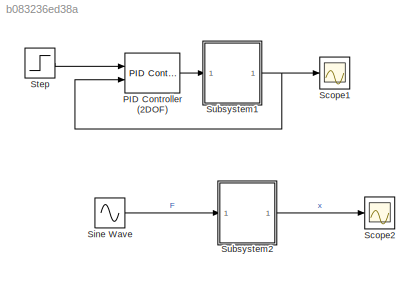
MODEL slx_b083236ed38a
KIND model
CONFIG AbsTol = auto
CONFIG EnableMultiTasking = off
CONFIG FixedStep = auto
CONFIG MaxStep = 0.001
CONFIG MinStep = auto
CONFIG RelTol = 1e-3
CONFIG SampleTimeConstraint = Unconstrained
CONFIG Solver = VariableStepAuto
CONFIG SolverName = VariableStepAuto
CONFIG StartTime = 0.0
CONFIG StopTime = 120
BLOCK [Reference] PID Controller (2DOF)  REF=simulink/Continuous/PID Controller (2DOF)
  Commented = on
  Ports = [2, 1]
  SourceBlock = simulink/Continuous/PID Controller (2DOF)
  SourceProductBaseCode = SL
  SourceType = PID 2dof
BLOCK [Scope] Scope1
  Commented = on
  Floating = off
  NumInputPorts = 1
  Ports = [1]
  ScopeSpecificationString = Simulink.scopes.TimeScopeBlockCfg('CurrentConfiguration', extmgr.ConfigurationSet(extmgr.Configuration('Core','General UI',true),extmgr.Configuration('Core','Source UI',true),extmgr.Configuration('Sources','WiredSimulink',true,'DataLoggingVariableName','ScopeData1'),extmgr.Configuration('Visuals','Time Domain',true),extmgr.Configuration('Tools','Plot Navigation',true),extmgr.Configuration('Tools',...<+40ch>
BLOCK [Scope] Scope2
  Floating = off
  NumInputPorts = 1
  Ports = [1]
  ScopeSpecificationString = Simulink.scopes.TimeScopeBlockCfg('CurrentConfiguration', extmgr.ConfigurationSet(extmgr.Configuration('Core','General UI',true),extmgr.Configuration('Core','Source UI',true),extmgr.Configuration('Sources','WiredSimulink',true,'DataLoggingVariableName','ScopeData1'),extmgr.Configuration('Visuals','Time Domain',true),extmgr.Configuration('Tools','Plot Navigation',true),extmgr.Configuration('Tools',...<+40ch>
BLOCK [Sin] Sine Wave
  Amplitude = F0
  Frequency = w2
  Ports = [0, 1]
  SampleTime = 0
BLOCK [Step] Step
  After = 1.60
  Commented = on
  SampleTime = 0
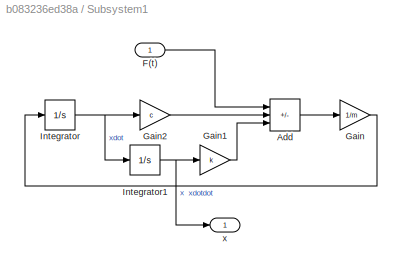
BLOCK [SubSystem] Subsystem1
  Commented = on
  Ports = [1, 1]
  RequestExecContextInheritance = off
BLOCK [Sum] Subsystem1/Add
  IconShape = rectangular
  Inputs = +--
  Ports = [3, 1]
BLOCK [Inport] Subsystem1/F(t)
BLOCK [Gain] Subsystem1/Gain
  Gain = 1/m
BLOCK [Gain] Subsystem1/Gain1
  Gain = k
BLOCK [Gain] Subsystem1/Gain2
  Gain = c
BLOCK [Integrator] Subsystem1/Integrator
  Ports = [1, 1]
BLOCK [Integrator] Subsystem1/Integrator1
  Ports = [1, 1]
BLOCK [Outport] Subsystem1/x
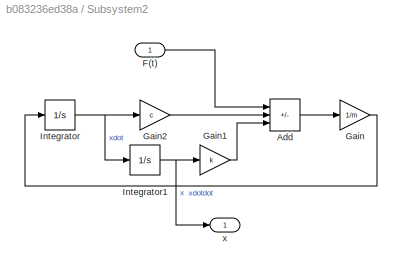
BLOCK [SubSystem] Subsystem2
  Ports = [1, 1]
  RequestExecContextInheritance = off
BLOCK [Sum] Subsystem2/Add
  IconShape = rectangular
  Inputs = +--
  Ports = [3, 1]
BLOCK [Inport] Subsystem2/F(t)
BLOCK [Gain] Subsystem2/Gain
  Gain = 1/m
BLOCK [Gain] Subsystem2/Gain1
  Gain = k
BLOCK [Gain] Subsystem2/Gain2
  Gain = c
BLOCK [Integrator] Subsystem2/Integrator
  Ports = [1, 1]
BLOCK [Integrator] Subsystem2/Integrator1
  Ports = [1, 1]
BLOCK [Outport] Subsystem2/x
LINE PID Controller (2DOF):1 -> Subsystem1:1
LINE Sine Wave:1 -> Subsystem2:1
LINE Step:1 -> PID Controller (2DOF):1
LINE Subsystem1/Add:1 -> Subsystem1/Gain:1
LINE Subsystem1/F(t):1 -> Subsystem1/Add:1
LINE Subsystem1/Gain1:1 -> Subsystem1/Add:3
LINE Subsystem1/Gain2:1 -> Subsystem1/Add:2
LINE Subsystem1/Gain:1 -> Subsystem1/Integrator:1
NET Subsystem1/Integrator1:1 -> Subsystem1/Gain1:1, Subsystem1/x:1
NET Subsystem1/Integrator:1 -> Subsystem1/Gain2:1, Subsystem1/Integrator1:1
NET Subsystem1:1 -> PID Controller (2DOF):2, Scope1:1
LINE Subsystem2/Add:1 -> Subsystem2/Gain:1
LINE Subsystem2/F(t):1 -> Subsystem2/Add:1
LINE Subsystem2/Gain1:1 -> Subsystem2/Add:3
LINE Subsystem2/Gain2:1 -> Subsystem2/Add:2
LINE Subsystem2/Gain:1 -> Subsystem2/Integrator:1
NET Subsystem2/Integrator1:1 -> Subsystem2/Gain1:1, Subsystem2/x:1
NET Subsystem2/Integrator:1 -> Subsystem2/Gain2:1, Subsystem2/Integrator1:1
LINE Subsystem2:1 -> Scope2:1
note: NET lines group one-source signal fan-out (src -> all destinations, sorted); 1:1 wires keep LINE
